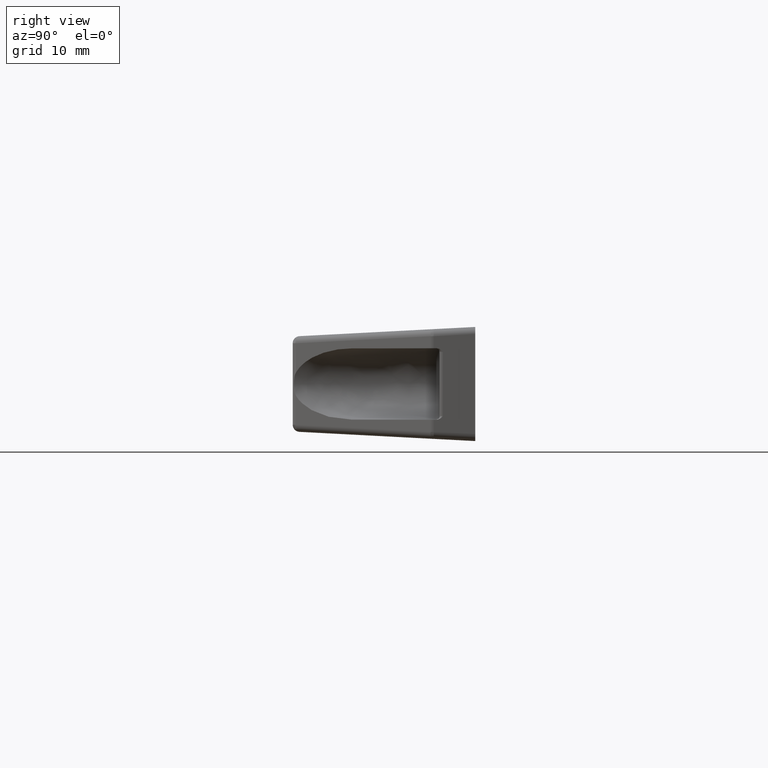
[diagram: clean part render]
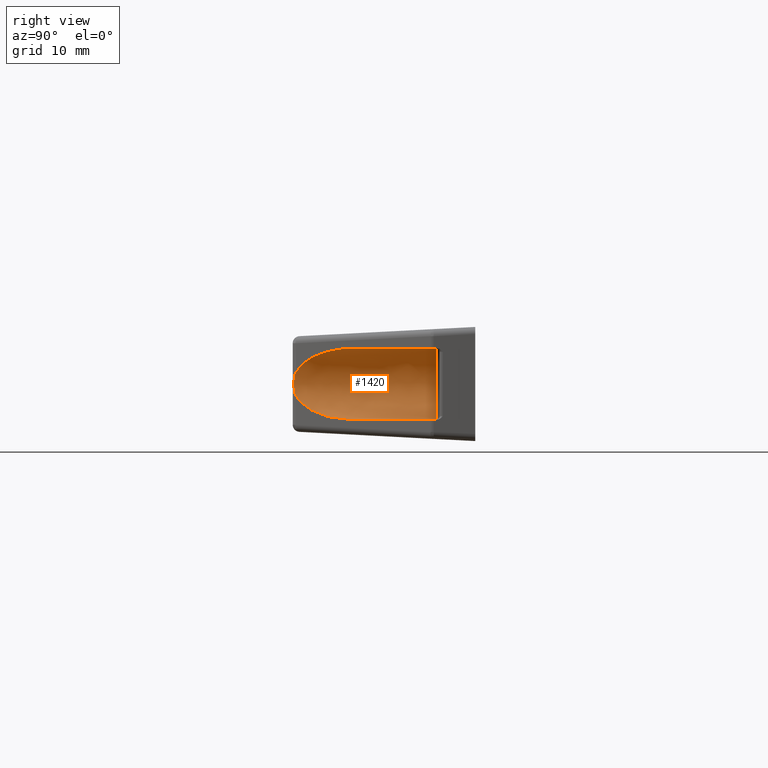
[diagram: same view with one face highlighted and labeled with its STEP entity id]
A machine part, right view. The second image highlights one B-rep face of the part: STEP entity #1420.
In plain terms, the highlighted face is a freeform B-spline surface patch.
Its self-contained STEP definition (entity closure, byte-faithful):
#1061=CARTESIAN_POINT('',(85.481615913176810,-5.500000000000000,4.999999999999800));
#1062=VERTEX_POINT('',#1061);
#1154=CARTESIAN_POINT('',(85.481615913176810,-5.500000000000000,-5.000000000000110));
#1155=VERTEX_POINT('',#1154);
#1189=CARTESIAN_POINT('',(85.481615913176810,-5.500000000000000,-5.000000000000110));
#1190=CARTESIAN_POINT('',(82.592144870624196,-5.486003126681316,-5.000000105367233));
#1191=CARTESIAN_POINT('',(81.147409197120254,-5.479004689284570,-2.500000105367236));
#1192=CARTESIAN_POINT('',(79.702673523616312,-5.472006251887823,-0.000000105367237));
#1193=CARTESIAN_POINT('',(81.147409105783680,-5.479004688842126,2.499999947316324));
#1194=CARTESIAN_POINT('',(82.592144687951034,-5.486003125796430,4.999999999999887));
#1195=CARTESIAN_POINT('',(85.481615913176810,-5.500000000000000,4.999999999999886));
#1203=(BOUNDED_CURVE()B_SPLINE_CURVE(2,(#1189,#1190,#1191,#1192,#1193,#1194,#1195),.UNSPECIFIED.,.F.,.U.)B_SPLINE_CURVE_WITH_KNOTS((3,2,2,3),(0.0,0.333333333333333,0.666666666666667,1.0),.UNSPECIFIED.)CURVE()GEOMETRIC_REPRESENTATION_ITEM()RATIONAL_B_SPLINE_CURVE((1.0,0.866025400742754,1.0,0.866025400742754,1.0,0.866025400742754,1.0))REPRESENTATION_ITEM(''));
#1204=EDGE_CURVE('',#1155,#1062,#1203,.T.);
#1324=CARTESIAN_POINT('',(84.611096653236075,-26.187846279040428,4.998215110959488));
#1325=CARTESIAN_POINT('',(85.640145356480261,-4.989442991655125,4.998215110959488));
#1326=CARTESIAN_POINT('',(79.396034037477008,-25.934687899641276,5.137762764063925));
#1327=CARTESIAN_POINT('',(80.425082740721194,-4.736284612255971,5.137762764063925));
#1328=CARTESIAN_POINT('',(79.484261014257058,-25.938970762591651,-0.084558411092573));
#1329=CARTESIAN_POINT('',(80.513309717501244,-4.740567475206346,-0.084558411092573));
#1330=CARTESIAN_POINT('',(79.572487991037107,-25.943253625542006,-5.306879586249057));
#1331=CARTESIAN_POINT('',(80.601536694281279,-4.744850338156720,-5.306879586249067));
#1332=CARTESIAN_POINT('',(84.779853793443692,-26.196038373225040,-4.990838338782801));
#1333=CARTESIAN_POINT('',(85.808902496687864,-4.997635085839743,-4.990838338782822));
#1341=(BOUNDED_SURFACE()B_SPLINE_SURFACE(1,2,((#1324,#1326,#1328,#1330,#1332),(#1325,#1327,#1329,#1331,#1333)),.UNSPECIFIED.,.F.,.F.,.U.)B_SPLINE_SURFACE_WITH_KNOTS((2,2),(3,2,3),(0.0,21.223365500510909),(0.0,8.541039155334032,17.082078310668059),.UNSPECIFIED.)GEOMETRIC_REPRESENTATION_ITEM()RATIONAL_B_SPLINE_SURFACE(((1.0,0.691513055782269,1.0,0.691513055782269,1.0),(1.0,0.691513055782269,1.0,0.691513055782269,1.0)))REPRESENTATION_ITEM('')SURFACE());
#1342=CARTESIAN_POINT('',(84.910312551090300,-17.268849259289549,-5.000000000000110));
#1343=VERTEX_POINT('',#1342);
#1344=CARTESIAN_POINT('',(85.481615913176810,-5.500000000000000,-5.000000000000110));
#1345=CARTESIAN_POINT('',(84.910312551090300,-17.268849259289549,-5.000000000000110));
#1346=QUASI_UNIFORM_CURVE('',1,(#1344,#1345),.UNSPECIFIED.,.F.,.U.);
#1347=EDGE_CURVE('',#1155,#1343,#1346,.T.);
#1348=ORIENTED_EDGE('',*,*,#1347,.F.);
#1349=ORIENTED_EDGE('',*,*,#1204,.T.);
#1350=CARTESIAN_POINT('',(84.910312551090300,-17.268849259289549,4.999999999999800));
#1351=VERTEX_POINT('',#1350);
#1352=CARTESIAN_POINT('',(84.910312551090300,-17.268849259289549,4.999999999999800));
#1353=CARTESIAN_POINT('',(85.481615913176810,-5.500000000000000,4.999999999999800));
#1354=QUASI_UNIFORM_CURVE('',1,(#1352,#1353),.UNSPECIFIED.,.F.,.U.);
#1355=EDGE_CURVE('',#1351,#1062,#1354,.T.);
#1356=ORIENTED_EDGE('',*,*,#1355,.F.);
#1357=CARTESIAN_POINT('',(79.795714868306902,-25.144639035015100,1.630397235537375));
#1358=VERTEX_POINT('',#1357);
#1359=CARTESIAN_POINT('',(79.795714868306916,-25.144639035015111,1.630397235537221));
#1360=CARTESIAN_POINT('',(81.053380981914998,-23.208003050493126,4.999999999999778));
#1361=CARTESIAN_POINT('',(84.910312551090300,-17.268849259289599,4.999999999999778));
#1369=(BOUNDED_CURVE()B_SPLINE_CURVE(2,(#1359,#1360,#1361),.UNSPECIFIED.,.F.,.U.)CURVE()GEOMETRIC_REPRESENTATION_ITEM()QUASI_UNIFORM_CURVE()RATIONAL_B_SPLINE_CURVE((1.0,0.814272511849531,1.0))REPRESENTATION_ITEM(''));
#1370=EDGE_CURVE('',#1358,#1351,#1369,.T.);
#1371=ORIENTED_EDGE('',*,*,#1370,.F.);
#1372=CARTESIAN_POINT('',(79.795714868306902,-25.144639035015100,-1.630397235537595));
#1373=VERTEX_POINT('',#1372);
#1374=CARTESIAN_POINT('',(79.795714868306902,-25.144639035015100,-1.630397235537645));
#1375=CARTESIAN_POINT('',(79.773565028305057,-25.178746797588040,-1.571052262102288));
#1376=CARTESIAN_POINT('',(79.752142486784948,-25.207336387736831,-1.509388059953107));
#1377=CARTESIAN_POINT('',(79.711387307881935,-25.257271055903210,-1.382661277060279));
#1378=CARTESIAN_POINT('',(79.692047505570301,-25.278560740652718,-1.317579921375076));
#1379=CARTESIAN_POINT('',(79.655837441112993,-25.315795038304319,-1.184620898995088));
#1380=CARTESIAN_POINT('',(79.638968586158256,-25.331710282101259,-1.116688532278508));
#1381=CARTESIAN_POINT('',(79.608392665197002,-25.359055976933330,-0.980484212192721));
#1382=CARTESIAN_POINT('',(79.594603335062871,-25.370562320105950,-0.911930456003328));
#1383=CARTESIAN_POINT('',(79.557747810199658,-25.400091582791511,-0.705081497449162));
#1384=CARTESIAN_POINT('',(79.539186471070238,-25.413227904894999,-0.565611240195030));
#1385=CARTESIAN_POINT('',(79.520525780405919,-25.426163364414869,-0.354368959249789));
#1386=CARTESIAN_POINT('',(79.515837437561387,-25.429315620702859,-0.283611628553824));
#1387=CARTESIAN_POINT('',(79.509578332827189,-25.433498837366098,-0.141425205304961));
#1388=CARTESIAN_POINT('',(79.508013301173548,-25.434525710049829,-0.069987495569579));
#1389=CARTESIAN_POINT('',(79.508074110511373,-25.434485560501841,0.144094288294750));
#1390=CARTESIAN_POINT('',(79.514418912027864,-25.430398625999128,0.285579318274003));
#1391=CARTESIAN_POINT('',(79.539254652441556,-25.413178603827131,0.566039382354600));
#1392=CARTESIAN_POINT('',(79.557749870877686,-25.400085897212549,0.705018101941657));
#1393=CARTESIAN_POINT('',(79.594485027445856,-25.370659117766209,0.911303764392480));
#1394=CARTESIAN_POINT('',(79.608230743585807,-25.359193214248180,0.979698971403230));
#1395=CARTESIAN_POINT('',(79.638721400536298,-25.331938830433870,1.115650501144864));
#1396=CARTESIAN_POINT('',(79.655534081714436,-25.316093363544201,1.183451312815540));
#1397=CARTESIAN_POINT('',(79.691845864802332,-25.278781511873920,1.316894438561176));
#1398=CARTESIAN_POINT('',(79.711237457099813,-25.257446173721771,1.382178298291932));
#1399=CARTESIAN_POINT('',(79.752082759701082,-25.207418008609618,1.509219276668537));
#1400=CARTESIAN_POINT('',(79.773543773705214,-25.178779526804870,1.570995315701867));
#1401=CARTESIAN_POINT('',(79.795714868306902,-25.144639035015100,1.630397235537375));
#1402=B_SPLINE_CURVE_WITH_KNOTS('',3,(#1374,#1375,#1376,#1377,#1378,#1379,#1380,#1381,#1382,#1383,#1384,#1385,#1386,#1387,#1388,#1389,#1390,#1391,#1392,#1393,#1394,#1395,#1396,#1397,#1398,#1399,#1400,#1401),.UNSPECIFIED.,.F.,.U.,(4,2,2,2,2,2,2,2,2,2,2,2,2,4),(0.0,0.062499999999999,0.124999999999997,0.187499999999996,0.249999999999994,0.374999999999993,0.437499999999994,0.499999999999994,0.624999999999994,0.749999999999995,0.812499999999996,0.874999999999997,0.937499999999999,1.0),.UNSPECIFIED.);
#1403=EDGE_CURVE('',#1373,#1358,#1402,.T.);
#1404=ORIENTED_EDGE('',*,*,#1403,.F.);
#1405=CARTESIAN_POINT('',(84.910312551090300,-17.268849259289549,-5.000000000000110));
#1406=CARTESIAN_POINT('',(81.053381030474299,-23.208002975718319,-5.000000130102520));
#1407=CARTESIAN_POINT('',(79.795714868306916,-25.144639035015029,-1.630397235537594));
#1415=(BOUNDED_CURVE()B_SPLINE_CURVE(2,(#1405,#1406,#1407),.UNSPECIFIED.,.F.,.U.)CURVE()GEOMETRIC_REPRESENTATION_ITEM()QUASI_UNIFORM_CURVE()RATIONAL_B_SPLINE_CURVE((1.0,0.814272501255652,1.0))REPRESENTATION_ITEM(''));
#1416=EDGE_CURVE('',#1343,#1373,#1415,.T.);
#1417=ORIENTED_EDGE('',*,*,#1416,.F.);
#1418=EDGE_LOOP('',(#1348,#1349,#1356,#1371,#1404,#1417));
#1419=FACE_OUTER_BOUND('',#1418,.T.);
#1420=ADVANCED_FACE('',(#1419),#1341,.F.);